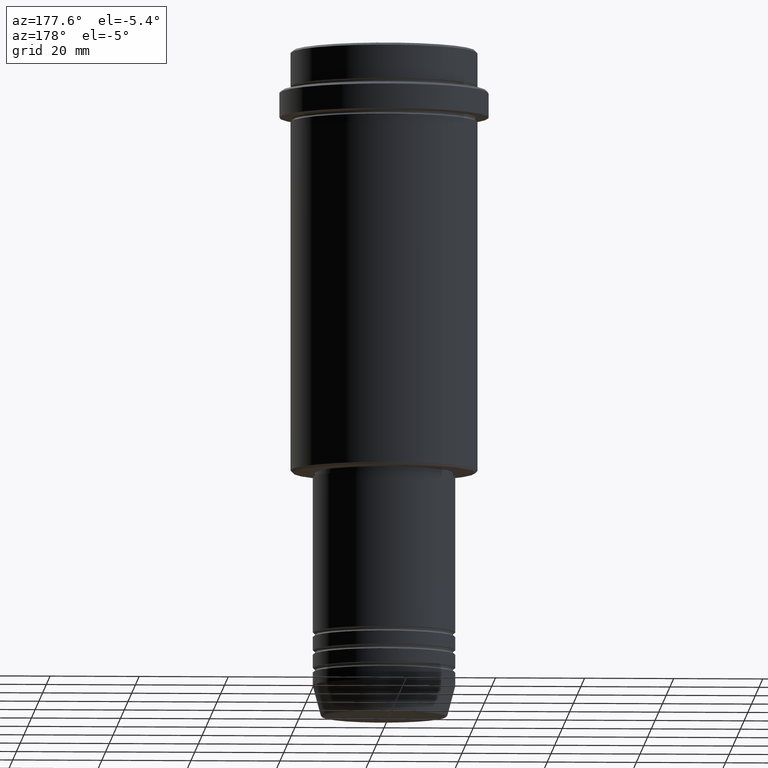
[diagram: clean part render]
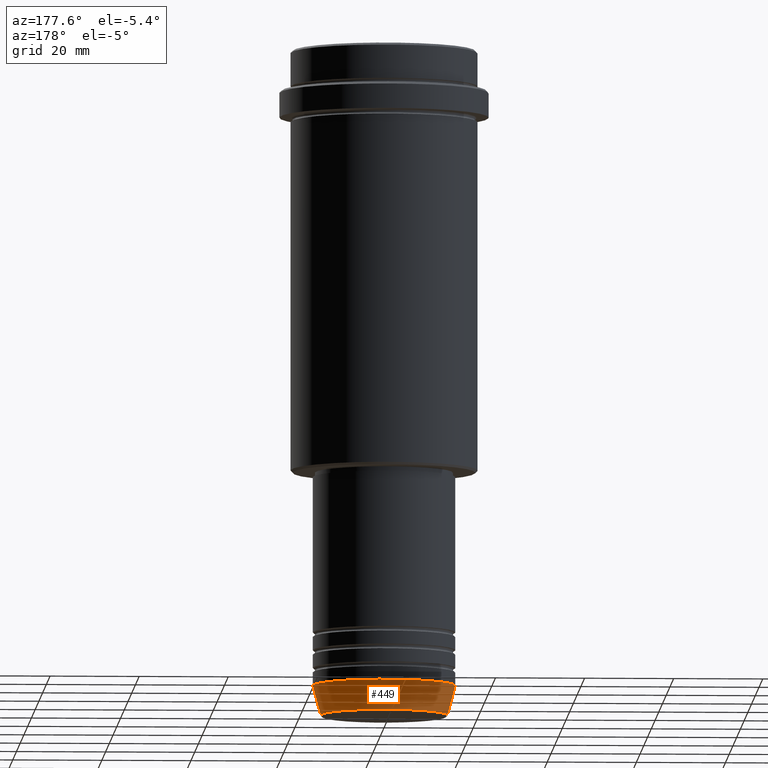
[diagram: same view with one face highlighted and labeled with its STEP entity id]
A machine part, auxiliary view. The second image highlights one B-rep face of the part: STEP entity #449.
In plain terms, the highlighted conical surface has half-angle 15 deg.
Its self-contained STEP definition (entity closure, byte-faithful):
#29 = ORIENTED_EDGE ( 'NONE', *, *, #282, .F. ) ;
#191 = DIRECTION ( 'NONE',  ( -0.000000000000000000, -0.000000000000000000, 1.000000000000000000 ) ) ;
#244 = CARTESIAN_POINT ( 'NONE',  ( 14.22365507213718772, 0.000000000000000000, -149.6294095225512422 ) ) ;
#265 = EDGE_CURVE ( 'NONE', #302, #1353, #1336, .T. ) ;
#274 = CARTESIAN_POINT ( 'NONE',  ( -16.00000000000000000, 1.959434878635765131E-15, -143.0000000000000000 ) ) ;
#282 = EDGE_CURVE ( 'NONE', #1353, #307, #779, .T. ) ;
#302 = VERTEX_POINT ( 'NONE', #244 ) ;
#307 = VERTEX_POINT ( 'NONE', #274 ) ;
#331 = DIRECTION ( 'NONE',  ( 0.2588190451025213501, 0.000000000000000000, 0.9659258262890680902 ) ) ;
#349 = CARTESIAN_POINT ( 'NONE',  ( 16.00000000000000000, 0.000000000000000000, -143.0000000000000000 ) ) ;
#350 = CARTESIAN_POINT ( 'NONE',  ( -16.00000000000000000, 1.959434878635765131E-15, -143.0000000000000000 ) ) ;
#368 = CIRCLE ( 'NONE', #900, 14.22365507213718772 ) ;
#433 = VECTOR ( 'NONE', #456, 1000.000000000000000 ) ;
#449 = ADVANCED_FACE ( 'NONE', ( #1054 ), #994, .T. ) ;
#456 = DIRECTION ( 'NONE',  ( -0.2588190451025213501, 3.169619151431772337E-17, 0.9659258262890680902 ) ) ;
#468 = ORIENTED_EDGE ( 'NONE', *, *, #265, .F. ) ;
#472 = ORIENTED_EDGE ( 'NONE', *, *, #1305, .T. ) ;
#544 = EDGE_CURVE ( 'NONE', #302, #654, #368, .T. ) ;
#614 = DIRECTION ( 'NONE',  ( 1.000000000000000000, 0.000000000000000000, 0.000000000000000000 ) ) ;
#632 = CARTESIAN_POINT ( 'NONE',  ( 0.000000000000000000, 0.000000000000000000, -143.0000000000000000 ) ) ;
#654 = VERTEX_POINT ( 'NONE', #1138 ) ;
#658 = EDGE_LOOP ( 'NONE', ( #1097, #472, #29, #468 ) ) ;
#690 = AXIS2_PLACEMENT_3D ( 'NONE', #787, #1120, #1228 ) ;
#712 = CARTESIAN_POINT ( 'NONE',  ( 16.00000000000000000, 0.000000000000000000, -143.0000000000000000 ) ) ;
#779 = CIRCLE ( 'NONE', #690, 16.00000000000000000 ) ;
#787 = CARTESIAN_POINT ( 'NONE',  ( 0.000000000000000000, 0.000000000000000000, -143.0000000000000000 ) ) ;
#846 = CARTESIAN_POINT ( 'NONE',  ( 0.000000000000000000, 0.000000000000000000, -149.6294095225512422 ) ) ;
#900 = AXIS2_PLACEMENT_3D ( 'NONE', #846, #1352, #1053 ) ;
#994 = CONICAL_SURFACE ( 'NONE', #1172, 16.00000000000000000, 0.2617993877991500740 ) ;
#1053 = DIRECTION ( 'NONE',  ( 1.000000000000000000, 0.000000000000000000, 0.000000000000000000 ) ) ;
#1054 = FACE_OUTER_BOUND ( 'NONE', #658, .T. ) ;
#1097 = ORIENTED_EDGE ( 'NONE', *, *, #544, .T. ) ;
#1120 = DIRECTION ( 'NONE',  ( -0.000000000000000000, -0.000000000000000000, 1.000000000000000000 ) ) ;
#1138 = CARTESIAN_POINT ( 'NONE',  ( -14.22365507213718772, 1.850665122131323337E-15, -149.6294095225512422 ) ) ;
#1172 = AXIS2_PLACEMENT_3D ( 'NONE', #632, #191, #614 ) ;
#1217 = VECTOR ( 'NONE', #331, 1000.000000000000000 ) ;
#1228 = DIRECTION ( 'NONE',  ( 1.000000000000000000, 0.000000000000000000, 0.000000000000000000 ) ) ;
#1253 = LINE ( 'NONE', #350, #433 ) ;
#1305 = EDGE_CURVE ( 'NONE', #654, #307, #1253, .T. ) ;
#1336 = LINE ( 'NONE', #349, #1217 ) ;
#1352 = DIRECTION ( 'NONE',  ( -0.000000000000000000, -0.000000000000000000, 1.000000000000000000 ) ) ;
#1353 = VERTEX_POINT ( 'NONE', #712 ) ;